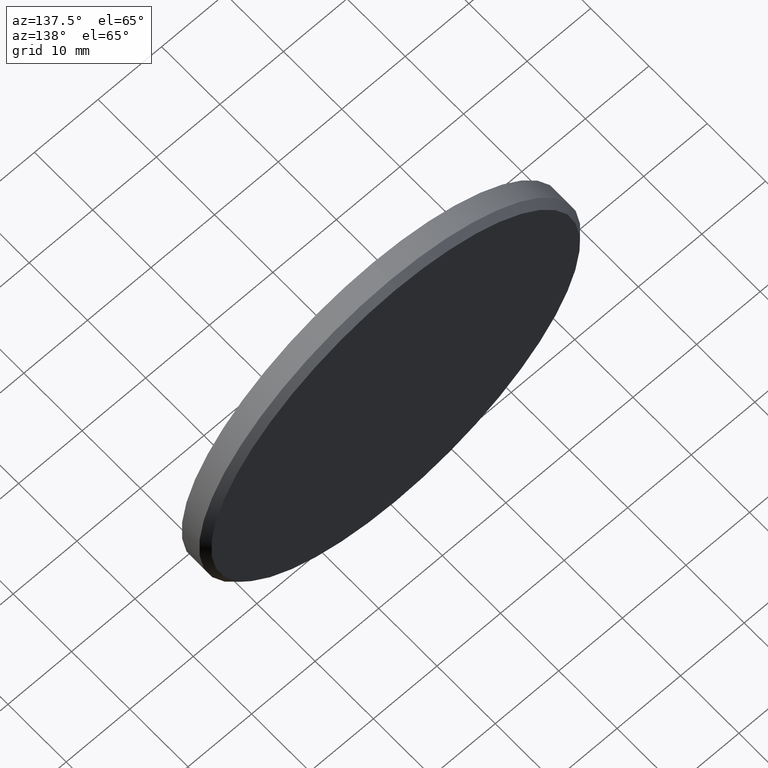
[diagram: clean part render]
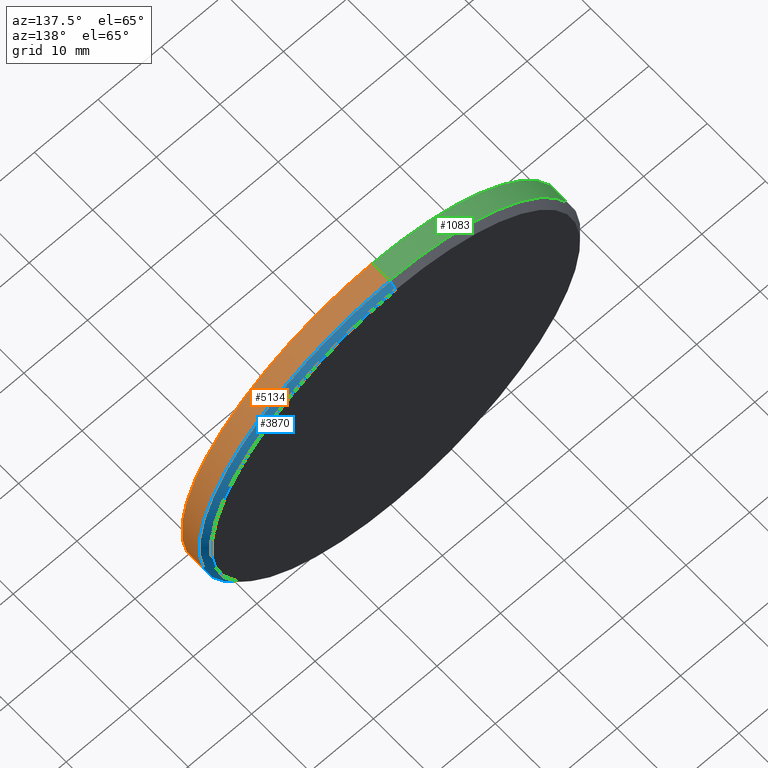
[diagram: same view with three faces highlighted in distinct colors, each labeled with its STEP entity id]
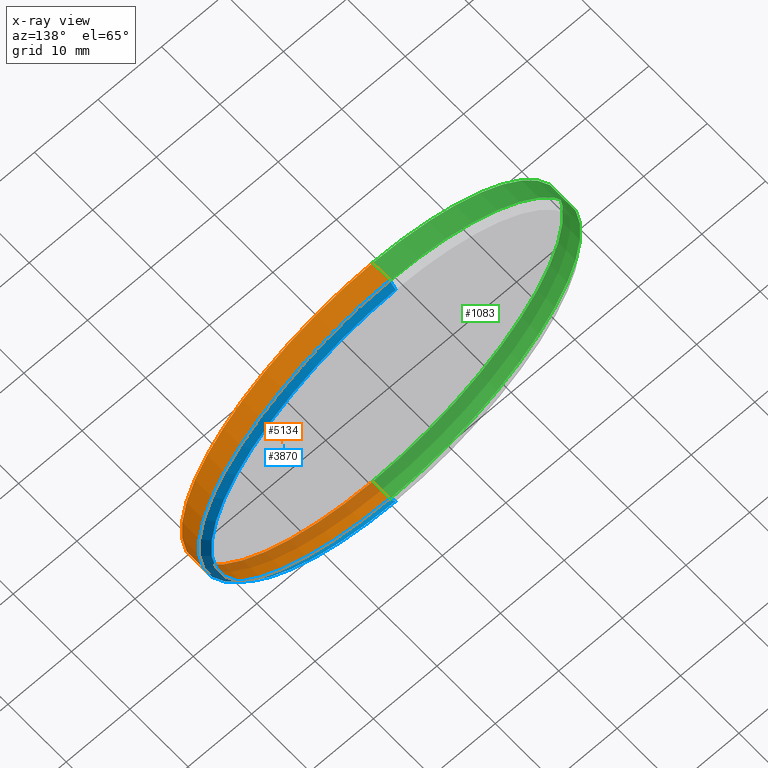
[diagram: x-ray of the same camera — body ghosted, the three highlighted faces saturated]
A machine part, auxiliary view with three faces highlighted in distinct colors.
The next image is the same camera in x-ray (body ghosted, the three faces saturated) — at least one of them is partly hidden behind the body in this view.
Their STEP definitions:

[orange] entity #5134 — the highlighted cylindrical surface (partial cylindrical patch) has radius 30 mm, axis along (-0, -1, -0).
#521 = ORIENTED_EDGE ( 'NONE', *, *, #12839, .T. ) ;
#1810 = CARTESIAN_POINT ( 'NONE',  ( 3.673940397442059178E-15, 2.000000000000000000, 30.00000000000000000 ) ) ;
#2285 = CARTESIAN_POINT ( 'NONE',  ( 3.673940397442059178E-15, -2.000000000000000000, 30.00000000000000000 ) ) ;
#2766 = AXIS2_PLACEMENT_3D ( 'NONE', #3330, #11466, #14627 ) ;
#3330 = CARTESIAN_POINT ( 'NONE',  ( 0.000000000000000000, 1.000000000000006217, 0.000000000000000000 ) ) ;
#3448 = CARTESIAN_POINT ( 'NONE',  ( 0.000000000000000000, 1.000000000000006217, -30.00000000000000000 ) ) ;
#4131 = CIRCLE ( 'NONE', #4695, 30.00000000000000000 ) ;
#4593 = CARTESIAN_POINT ( 'NONE',  ( 0.000000000000000000, -2.000000000000000000, 0.000000000000000000 ) ) ;
#4608 = CYLINDRICAL_SURFACE ( 'NONE', #10062, 30.00000000000000000 ) ;
#4695 = AXIS2_PLACEMENT_3D ( 'NONE', #4593, #13984, #12794 ) ;
#4726 = VERTEX_POINT ( 'NONE', #6004 ) ;
#4895 = VECTOR ( 'NONE', #9195, 1000.000000000000000 ) ;
#5134 = ADVANCED_FACE ( 'NONE', ( #10808 ), #4608, .T. ) ;
#5356 = VECTOR ( 'NONE', #12318, 1000.000000000000000 ) ;
#5840 = VERTEX_POINT ( 'NONE', #2285 ) ;
#6004 = CARTESIAN_POINT ( 'NONE',  ( 0.000000000000000000, -2.000000000000000000, -30.00000000000000000 ) ) ;
#7018 = EDGE_CURVE ( 'NONE', #8239, #4726, #14740, .T. ) ;
#7167 = ORIENTED_EDGE ( 'NONE', *, *, #10061, .T. ) ;
#8038 = DIRECTION ( 'NONE',  ( -0.000000000000000000, -1.000000000000000000, -0.000000000000000000 ) ) ;
#8077 = CARTESIAN_POINT ( 'NONE',  ( 0.000000000000000000, 2.000000000000000000, -30.00000000000000000 ) ) ;
#8239 = VERTEX_POINT ( 'NONE', #3448 ) ;
#9195 = DIRECTION ( 'NONE',  ( -0.000000000000000000, -1.000000000000000000, -0.000000000000000000 ) ) ;
#10061 = EDGE_CURVE ( 'NONE', #5840, #4726, #4131, .T. ) ;
#10062 = AXIS2_PLACEMENT_3D ( 'NONE', #10367, #8038, #15103 ) ;
#10367 = CARTESIAN_POINT ( 'NONE',  ( 0.000000000000000000, 2.000000000000000000, 0.000000000000000000 ) ) ;
#10808 = FACE_OUTER_BOUND ( 'NONE', #12641, .T. ) ;
#11170 = CIRCLE ( 'NONE', #2766, 30.00000000000000000 ) ;
#11273 = ORIENTED_EDGE ( 'NONE', *, *, #7018, .F. ) ;
#11466 = DIRECTION ( 'NONE',  ( 0.000000000000000000, -1.000000000000000000, 0.000000000000000000 ) ) ;
#11916 = LINE ( 'NONE', #1810, #5356 ) ;
#11986 = CARTESIAN_POINT ( 'NONE',  ( 3.673940397442059178E-15, 1.000000000000006217, 30.00000000000000000 ) ) ;
#12318 = DIRECTION ( 'NONE',  ( -0.000000000000000000, -1.000000000000000000, -0.000000000000000000 ) ) ;
#12641 = EDGE_LOOP ( 'NONE', ( #15092, #521, #7167, #11273 ) ) ;
#12794 = DIRECTION ( 'NONE',  ( 0.000000000000000000, 0.000000000000000000, 1.000000000000000000 ) ) ;
#12839 = EDGE_CURVE ( 'NONE', #13105, #5840, #11916, .T. ) ;
#13105 = VERTEX_POINT ( 'NONE', #11986 ) ;
#13183 = EDGE_CURVE ( 'NONE', #8239, #13105, #11170, .T. ) ;
#13984 = DIRECTION ( 'NONE',  ( 0.000000000000000000, 1.000000000000000000, 0.000000000000000000 ) ) ;
#14627 = DIRECTION ( 'NONE',  ( 0.000000000000000000, 0.000000000000000000, 1.000000000000000000 ) ) ;
#14740 = LINE ( 'NONE', #8077, #4895 ) ;
#15092 = ORIENTED_EDGE ( 'NONE', *, *, #13183, .T. ) ;
#15103 = DIRECTION ( 'NONE',  ( 0.000000000000000000, 0.000000000000000000, -1.000000000000000000 ) ) ;

[blue] entity #3870 — the highlighted conical surface has half-angle 45 deg.
#543 = DIRECTION ( 'NONE',  ( 0.000000000000000000, -0.7071067811865462405, -0.7071067811865489050 ) ) ;
#597 = CARTESIAN_POINT ( 'NONE',  ( 0.000000000000000000, 2.000000000000000000, -29.00000000000000000 ) ) ;
#1387 = LINE ( 'NONE', #11194, #7783 ) ;
#2279 = CARTESIAN_POINT ( 'NONE',  ( 0.000000000000000000, 2.000000000000000000, 0.000000000000000000 ) ) ;
#2703 = VERTEX_POINT ( 'NONE', #597 ) ;
#2766 = AXIS2_PLACEMENT_3D ( 'NONE', #3330, #11466, #14627 ) ;
#3277 = DIRECTION ( 'NONE',  ( 0.000000000000000000, -1.000000000000000000, 0.000000000000000000 ) ) ;
#3330 = CARTESIAN_POINT ( 'NONE',  ( 0.000000000000000000, 1.000000000000006217, 0.000000000000000000 ) ) ;
#3448 = CARTESIAN_POINT ( 'NONE',  ( 0.000000000000000000, 1.000000000000006217, -30.00000000000000000 ) ) ;
#3466 = DIRECTION ( 'NONE',  ( 0.000000000000000000, 0.000000000000000000, -1.000000000000000000 ) ) ;
#3526 = DIRECTION ( 'NONE',  ( 0.000000000000000000, 1.000000000000000000, 0.000000000000000000 ) ) ;
#3870 = ADVANCED_FACE ( 'NONE', ( #8107 ), #7747, .T. ) ;
#5506 = CARTESIAN_POINT ( 'NONE',  ( 0.000000000000000000, 2.000000000000000000, 0.000000000000000000 ) ) ;
#5988 = CARTESIAN_POINT ( 'NONE',  ( 3.551475717527324030E-15, 2.000000000000000000, 29.00000000000000000 ) ) ;
#6527 = AXIS2_PLACEMENT_3D ( 'NONE', #5506, #3277, #3466 ) ;
#7191 = VECTOR ( 'NONE', #10619, 999.9999999999998863 ) ;
#7747 = CONICAL_SURFACE ( 'NONE', #6527, 29.00000000000000000, 0.7853981633974501664 ) ;
#7783 = VECTOR ( 'NONE', #543, 999.9999999999998863 ) ;
#8040 = AXIS2_PLACEMENT_3D ( 'NONE', #2279, #3526, #10441 ) ;
#8107 = FACE_OUTER_BOUND ( 'NONE', #13818, .T. ) ;
#8239 = VERTEX_POINT ( 'NONE', #3448 ) ;
#9234 = EDGE_CURVE ( 'NONE', #11336, #2703, #14533, .T. ) ;
#9517 = EDGE_CURVE ( 'NONE', #2703, #8239, #1387, .T. ) ;
#9545 = LINE ( 'NONE', #5988, #7191 ) ;
#9612 = ORIENTED_EDGE ( 'NONE', *, *, #13183, .F. ) ;
#9955 = ORIENTED_EDGE ( 'NONE', *, *, #12363, .T. ) ;
#10441 = DIRECTION ( 'NONE',  ( 0.000000000000000000, 0.000000000000000000, 1.000000000000000000 ) ) ;
#10509 = CARTESIAN_POINT ( 'NONE',  ( 3.612708057484691604E-15, 2.000000000000000000, 29.00000000000000000 ) ) ;
#10619 = DIRECTION ( 'NONE',  ( 8.659560562354950115E-17, -0.7071067811865462405, 0.7071067811865489050 ) ) ;
#10967 = ORIENTED_EDGE ( 'NONE', *, *, #9517, .F. ) ;
#11170 = CIRCLE ( 'NONE', #2766, 30.00000000000000000 ) ;
#11194 = CARTESIAN_POINT ( 'NONE',  ( 0.000000000000000000, 2.000000000000000000, -29.00000000000000000 ) ) ;
#11336 = VERTEX_POINT ( 'NONE', #10509 ) ;
#11466 = DIRECTION ( 'NONE',  ( 0.000000000000000000, -1.000000000000000000, 0.000000000000000000 ) ) ;
#11986 = CARTESIAN_POINT ( 'NONE',  ( 3.673940397442059178E-15, 1.000000000000006217, 30.00000000000000000 ) ) ;
#12363 = EDGE_CURVE ( 'NONE', #11336, #13105, #9545, .T. ) ;
#13105 = VERTEX_POINT ( 'NONE', #11986 ) ;
#13183 = EDGE_CURVE ( 'NONE', #8239, #13105, #11170, .T. ) ;
#13818 = EDGE_LOOP ( 'NONE', ( #14750, #9955, #9612, #10967 ) ) ;
#14533 = CIRCLE ( 'NONE', #8040, 29.00000000000000000 ) ;
#14627 = DIRECTION ( 'NONE',  ( 0.000000000000000000, 0.000000000000000000, 1.000000000000000000 ) ) ;
#14750 = ORIENTED_EDGE ( 'NONE', *, *, #9234, .F. ) ;

[green] entity #1083 — the highlighted cylindrical surface (partial cylindrical patch) has radius 30 mm, axis along (-0, -1, -0).
#178 = ORIENTED_EDGE ( 'NONE', *, *, #660, .T. ) ;
#660 = EDGE_CURVE ( 'NONE', #13105, #8239, #7403, .T. ) ;
#1083 = ADVANCED_FACE ( 'NONE', ( #4117 ), #5220, .T. ) ;
#1399 = CARTESIAN_POINT ( 'NONE',  ( 0.000000000000000000, -2.000000000000000000, 0.000000000000000000 ) ) ;
#1810 = CARTESIAN_POINT ( 'NONE',  ( 3.673940397442059178E-15, 2.000000000000000000, 30.00000000000000000 ) ) ;
#2010 = CARTESIAN_POINT ( 'NONE',  ( 0.000000000000000000, 1.000000000000006217, 0.000000000000000000 ) ) ;
#2285 = CARTESIAN_POINT ( 'NONE',  ( 3.673940397442059178E-15, -2.000000000000000000, 30.00000000000000000 ) ) ;
#3448 = CARTESIAN_POINT ( 'NONE',  ( 0.000000000000000000, 1.000000000000006217, -30.00000000000000000 ) ) ;
#3551 = ORIENTED_EDGE ( 'NONE', *, *, #10920, .T. ) ;
#4117 = FACE_OUTER_BOUND ( 'NONE', #14498, .T. ) ;
#4726 = VERTEX_POINT ( 'NONE', #6004 ) ;
#4895 = VECTOR ( 'NONE', #9195, 1000.000000000000000 ) ;
#5220 = CYLINDRICAL_SURFACE ( 'NONE', #8978, 30.00000000000000000 ) ;
#5356 = VECTOR ( 'NONE', #12318, 1000.000000000000000 ) ;
#5449 = DIRECTION ( 'NONE',  ( 0.000000000000000000, -1.000000000000000000, 0.000000000000000000 ) ) ;
#5840 = VERTEX_POINT ( 'NONE', #2285 ) ;
#6004 = CARTESIAN_POINT ( 'NONE',  ( 0.000000000000000000, -2.000000000000000000, -30.00000000000000000 ) ) ;
#7018 = EDGE_CURVE ( 'NONE', #8239, #4726, #14740, .T. ) ;
#7403 = CIRCLE ( 'NONE', #10819, 30.00000000000000000 ) ;
#8031 = DIRECTION ( 'NONE',  ( 0.000000000000000000, 0.000000000000000000, -1.000000000000000000 ) ) ;
#8077 = CARTESIAN_POINT ( 'NONE',  ( 0.000000000000000000, 2.000000000000000000, -30.00000000000000000 ) ) ;
#8239 = VERTEX_POINT ( 'NONE', #3448 ) ;
#8978 = AXIS2_PLACEMENT_3D ( 'NONE', #9191, #12648, #8031 ) ;
#9191 = CARTESIAN_POINT ( 'NONE',  ( 0.000000000000000000, 2.000000000000000000, 0.000000000000000000 ) ) ;
#9195 = DIRECTION ( 'NONE',  ( -0.000000000000000000, -1.000000000000000000, -0.000000000000000000 ) ) ;
#9410 = DIRECTION ( 'NONE',  ( 0.000000000000000000, 1.000000000000000000, 0.000000000000000000 ) ) ;
#9823 = ORIENTED_EDGE ( 'NONE', *, *, #12839, .F. ) ;
#10657 = CIRCLE ( 'NONE', #14576, 30.00000000000000000 ) ;
#10819 = AXIS2_PLACEMENT_3D ( 'NONE', #2010, #5449, #14862 ) ;
#10920 = EDGE_CURVE ( 'NONE', #4726, #5840, #10657, .T. ) ;
#11916 = LINE ( 'NONE', #1810, #5356 ) ;
#11986 = CARTESIAN_POINT ( 'NONE',  ( 3.673940397442059178E-15, 1.000000000000006217, 30.00000000000000000 ) ) ;
#12318 = DIRECTION ( 'NONE',  ( -0.000000000000000000, -1.000000000000000000, -0.000000000000000000 ) ) ;
#12648 = DIRECTION ( 'NONE',  ( -0.000000000000000000, -1.000000000000000000, -0.000000000000000000 ) ) ;
#12839 = EDGE_CURVE ( 'NONE', #13105, #5840, #11916, .T. ) ;
#12867 = DIRECTION ( 'NONE',  ( 0.000000000000000000, 0.000000000000000000, 1.000000000000000000 ) ) ;
#13105 = VERTEX_POINT ( 'NONE', #11986 ) ;
#14498 = EDGE_LOOP ( 'NONE', ( #9823, #178, #14654, #3551 ) ) ;
#14576 = AXIS2_PLACEMENT_3D ( 'NONE', #1399, #9410, #12867 ) ;
#14654 = ORIENTED_EDGE ( 'NONE', *, *, #7018, .T. ) ;
#14740 = LINE ( 'NONE', #8077, #4895 ) ;
#14862 = DIRECTION ( 'NONE',  ( 0.000000000000000000, 0.000000000000000000, 1.000000000000000000 ) ) ;